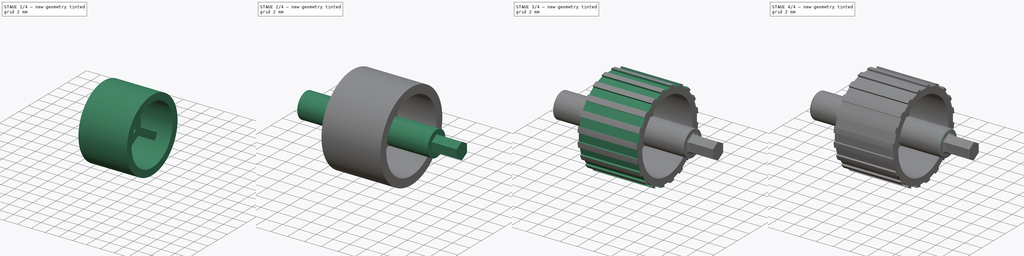
[diagram: build sequence overview — one tinted view per stage of 4, left to right]
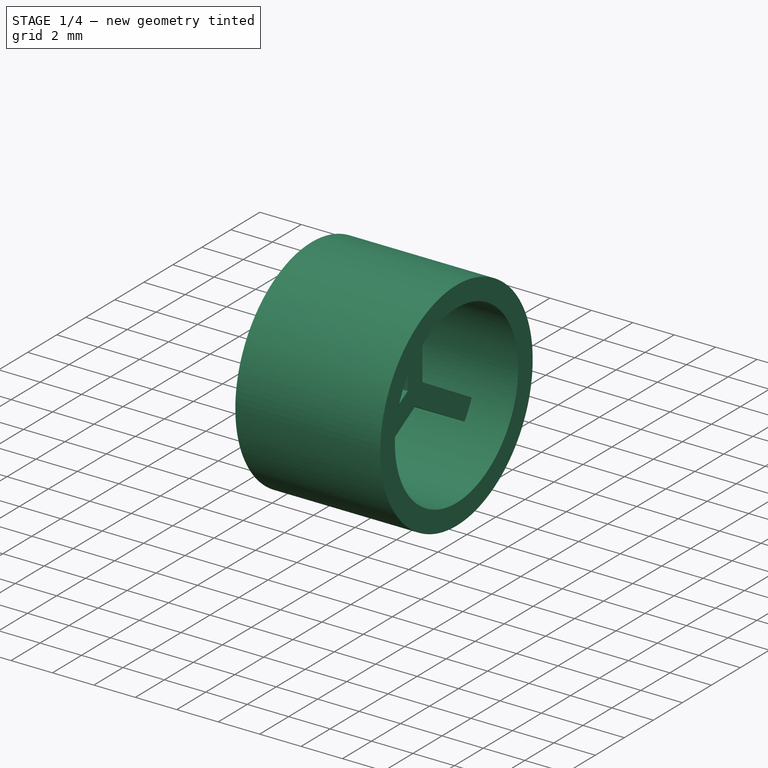
[diagram: stage 1 of 4 — iso view after this stage's code; geometry added in this stage tinted green]
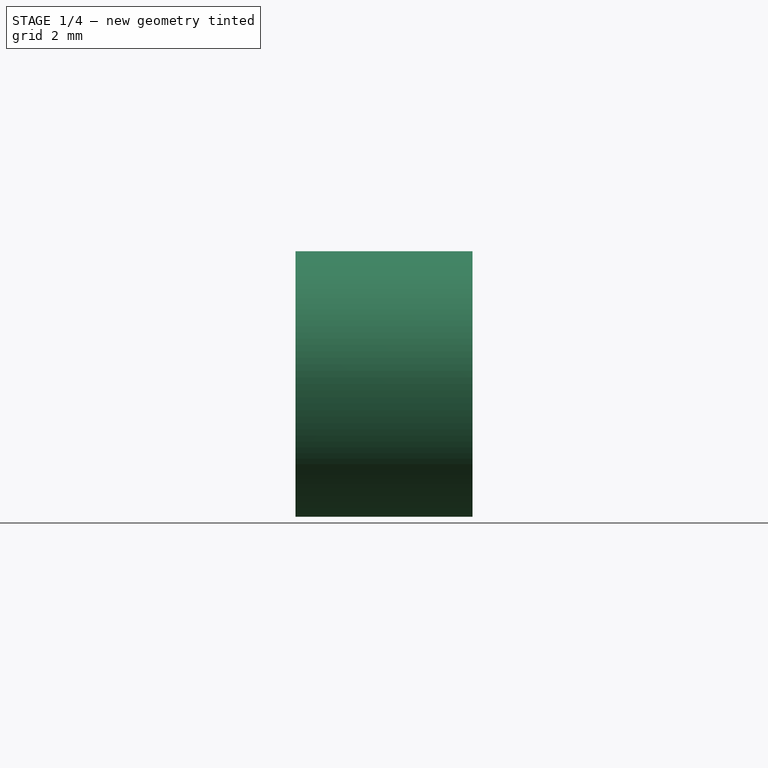
[diagram: stage 1 of 4 — front view after this stage's code; geometry added in this stage tinted green]
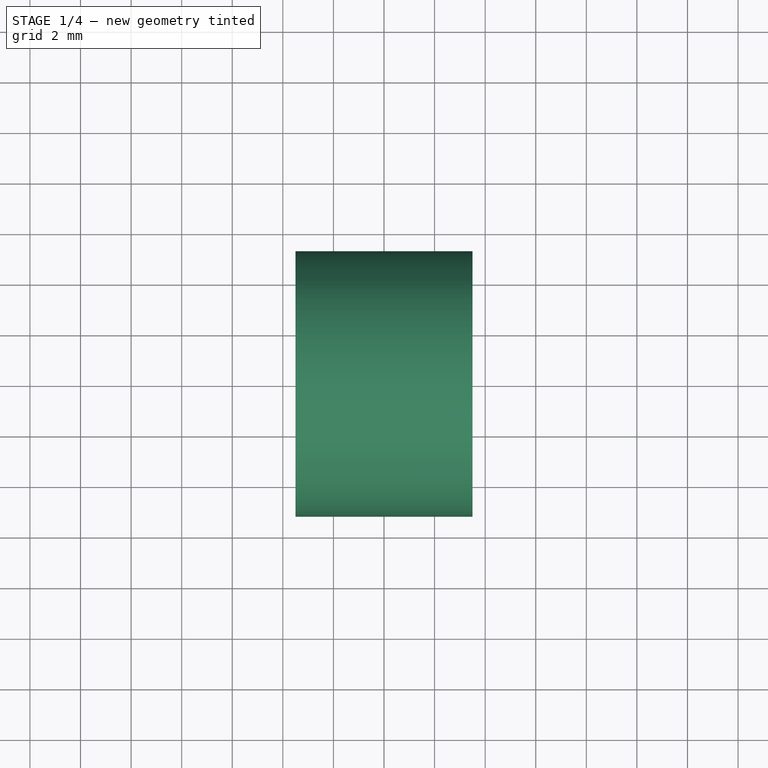
[diagram: stage 1 of 4 — top view after this stage's code; geometry added in this stage tinted green]
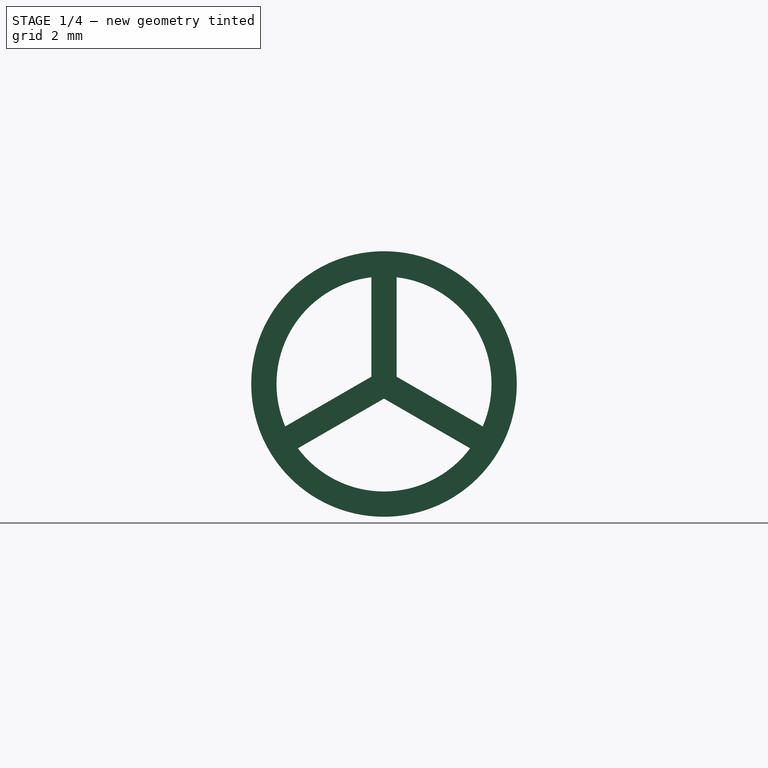
[diagram: stage 1 of 4 — right view after this stage's code; geometry added in this stage tinted green]
FCSTD DOCUMENT  (FreeCAD 1.0R39285 (Git))
Label: scroll_1.73_10.5mm
License: All rights reserved
LicenseURL: https://en.wikipedia.org/wiki/All_rights_reserved
objects: Part::Feature×49, Sketcher::SketchObject×5, PartDesign::Pad×5, App::Part×5, PartDesign::Fillet×4, PartDesign::PolarPattern×2, PartDesign::Pocket×1, PartDesign::Body×1
note: 94 computed .brp shape members not serialized (recipe doc carries the construction recipe); baked Part::Feature solids carry a one-line shape summary decoded from their .brp

FEATURE [Sketcher::SketchObject] Sketch
  ArcFitTolerance = 1e-06
  AttachmentSupport = -> [YZ_Plane]
  FullyConstrained = true
  MakeInternals = false
  MapMode = 5
  Placement = pos=(0,0,0) rot=(0.57735,0.57735,0.57735;2.0944rad)
  sketch-geometry (2):
    g0: Circle CenterX=0 CenterY=0 CenterZ=0 NormalX=0 NormalY=0 NormalZ=1 AngleXU=0 Radius=5.25
    g1: Circle CenterX=0 CenterY=0 CenterZ=0 NormalX=0 NormalY=0 NormalZ=1 AngleXU=0 Radius=4.25
  constraints (4):
    c: Diameter(g0) = 10.5
    c: Diameter(g1) = 8.5
    c: Coincident(g0,g-1)
    c: Coincident(g1,g0)
FEATURE [PartDesign::Pad] Pad
  Direction = (1,0,0)
  Length = 7
  Length2 = 10
  Midplane = true
  Placement = pos=(0,0,0) rot=(1,1,1;2.0944rad)
  Profile = -> Sketch
  ReferenceAxis = -> Sketch [N_Axis]
  Refine = true
  Suppressed = false
  Type = 0
FEATURE [Sketcher::SketchObject] Sketch001
  ArcFitTolerance = 1e-06
  AttachmentSupport = -> [YZ_Plane]
  ExternalGeometry = -> [Pad]
  FullyConstrained = true
  MakeInternals = false
  MapMode = 5
  Placement = pos=(0,0,0) rot=(0.57735,0.57735,0.57735;2.0944rad)
  sketch-geometry (7):
    g0: LineSegment StartX=-0.5 StartY=4.75 StartZ=0 EndX=-0.5 EndY=0 EndZ=0
    g1: LineSegment StartX=-0.5 StartY=0 StartZ=0 EndX=0.5 EndY=0 EndZ=0
    g2: LineSegment StartX=0.5 StartY=0 StartZ=0 EndX=0.5 EndY=4.75 EndZ=0
    g3: LineSegment StartX=0.5 StartY=4.75 StartZ=0 EndX=-0.5 EndY=4.75 EndZ=0
    g4: LineSegment [constr] StartX=0 StartY=5.25 StartZ=0 EndX=0 EndY=4.25 EndZ=0
    g5: GeomPoint [constr] X=0 Y=4.75 Z=0
    g6: GeomPoint [constr] X=0 Y=4.75 Z=0
  constraints (17):
    c: Coincident(g0,g1)
    c: Coincident(g1,g2)
    c: Coincident(g2,g3)
    c: Coincident(g3,g0)
    c: Vertical(g0)
    c: Vertical(g2)
    c: Horizontal(g1)
    c: Horizontal(g3)
    c: Distance(g1,g1) = 1
    c: Vertical(g4)
    c: PointOnObject(g4,g-4)
    c: PointOnObject(g4,g-3)
    c: Symmetric(g4,g4,g5)
    c: PointOnObject(g5,g-2)
    c: Symmetric(g3,g3,g6)
    c: Coincident(g6,g5)
    c: PointOnObject(g1,g-1)
FEATURE [PartDesign::Pad] Pad001
  BaseFeature = -> Pad
  Direction = (1,0,0)
  Length = 3
  Length2 = 10
  Midplane = true
  Placement = pos=(0,0,0) rot=(1,1,1;2.0944rad)
  Profile = -> Sketch001
  ReferenceAxis = -> Sketch001 [N_Axis]
  Refine = true
  Suppressed = false
  Type = 0
FEATURE [PartDesign::PolarPattern] PolarPattern
  Angle = 360
  Axis = -> Sketch001 [N_Axis]
  BaseFeature = -> Pad001
  Mode = 0
  Occurrences = 3
  Offset = 120
  Originals = -> [Pad001]
  Placement = pos=(0,0,0) rot=(1,1,1;2.0944rad)
  Refine = true
  Suppressed = false
  TransformMode = 0
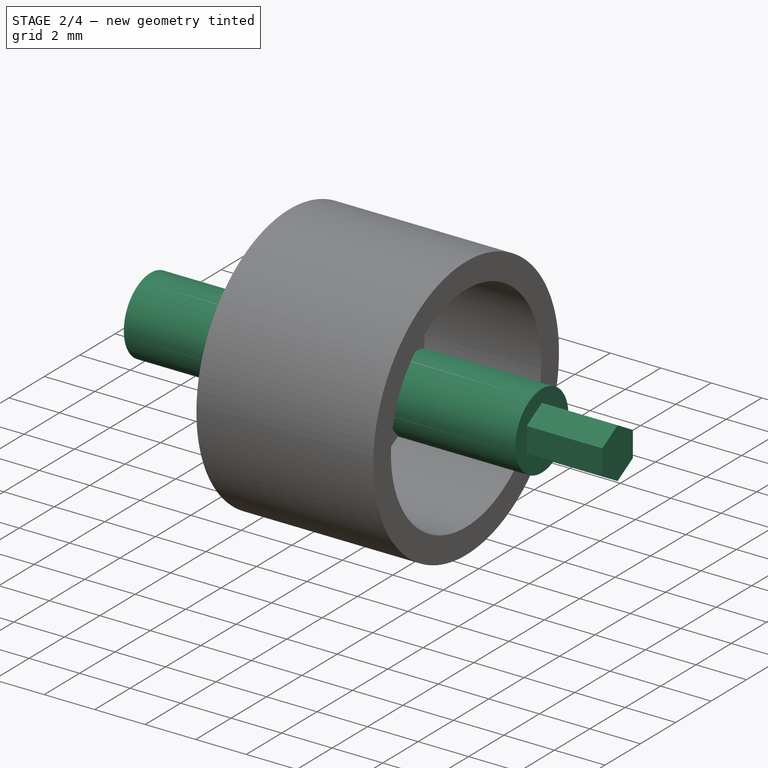
[diagram: stage 2 of 4 — iso view after this stage's code; geometry added in this stage tinted green]
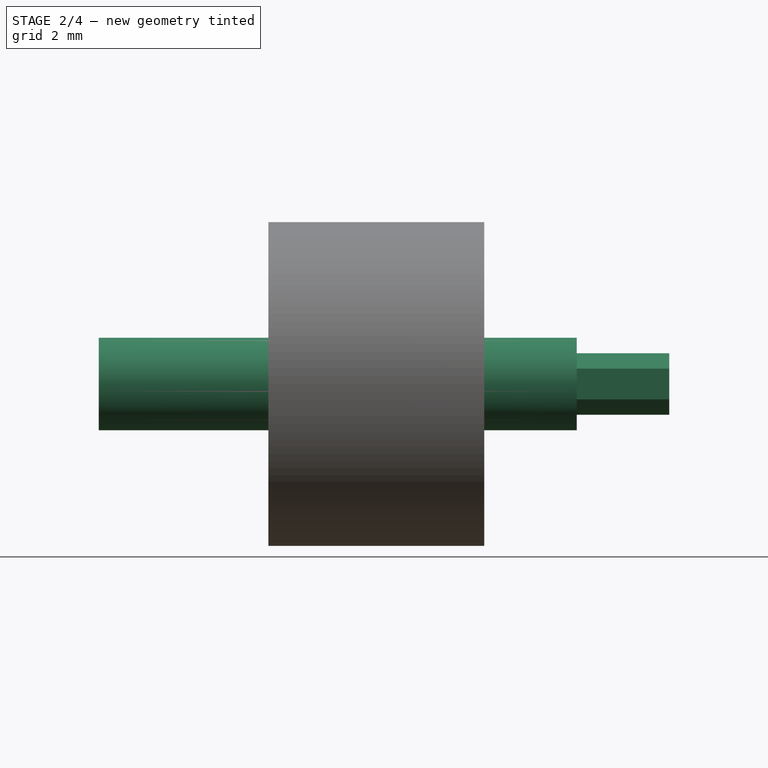
[diagram: stage 2 of 4 — front view after this stage's code; geometry added in this stage tinted green]
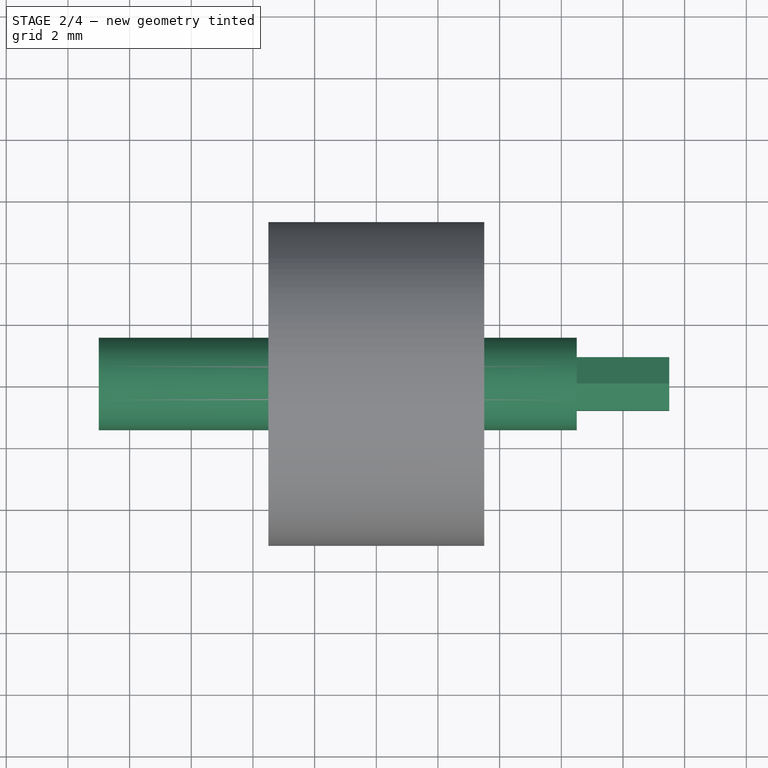
[diagram: stage 2 of 4 — top view after this stage's code; geometry added in this stage tinted green]
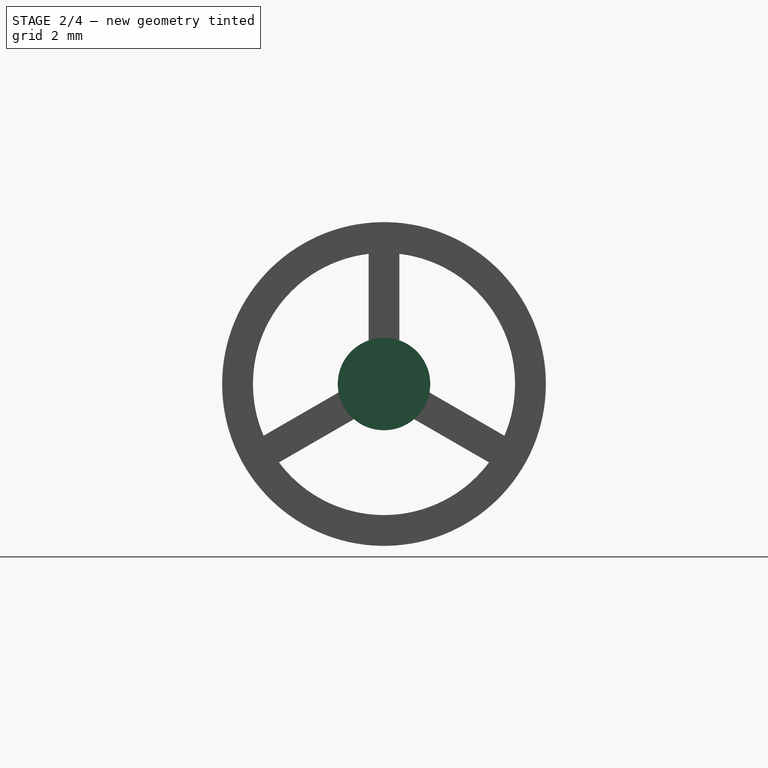
[diagram: stage 2 of 4 — right view after this stage's code; geometry added in this stage tinted green]
FEATURE [Sketcher::SketchObject] Sketch002
  ArcFitTolerance = 1e-06
  AttachmentSupport = -> [YZ_Plane]
  FullyConstrained = true
  MakeInternals = false
  MapMode = 5
  Placement = pos=(0,0,0) rot=(0.57735,0.57735,0.57735;2.0944rad)
  sketch-geometry (1):
    g0: Circle CenterX=0 CenterY=0 CenterZ=0 NormalX=0 NormalY=0 NormalZ=1 AngleXU=0 Radius=1.5
  constraints (2):
    c: Diameter(g0) = 3
    c: Coincident(g0,g-1)
FEATURE [PartDesign::Pad] Pad002
  BaseFeature = -> PolarPattern
  Direction = (1,0,0)
  Length = 6.5
  Length2 = 10
  Placement = pos=(0,0,0) rot=(1,1,1;2.0944rad)
  Profile = -> Sketch002
  ReferenceAxis = -> Sketch002 [N_Axis]
  Refine = true
  Suppressed = false
  Type = 0
FEATURE [PartDesign::Pad] Pad003
  BaseFeature = -> Pad002
  Direction = (1,0,0)
  Length = 9
  Length2 = 10
  Placement = pos=(0,0,0) rot=(1,1,1;2.0944rad)
  Profile = -> Sketch002
  ReferenceAxis = -> Sketch002 [N_Axis]
  Refine = true
  Reversed = true
  Suppressed = false
  Type = 0
FEATURE [Part::Feature] Part__Feature  label="C_0402_1005Metric"
  Placement = pos=(-0.25,11.55,1.55) rot=(0,0,1;1.5708rad)
  shape: bbox 0.5 x 1 x 0.5 mm, 28 faces (baked)
FEATURE [Part::Feature] Part__Feature001  label="C_0402_1005Metric001"
  Placement = pos=(4.4,10.85,1.55) rot=(0,0,1;1.5708rad)
  shape: bbox 0.5 x 1 x 0.5 mm, 28 faces (baked)
FEATURE [Part::Feature] Part__Feature002  label="C_0805_2012Metric"
  Placement = pos=(-7.3,-13.65,1.55) rot=(0,0,-1;1.5708rad)
  shape: bbox 1.25 x 2 x 1.25 mm, 28 faces (baked)
FEATURE [Part::Feature] Part__Feature003  label="R_0402_1005Metric"
  Placement = pos=(-7.1,-7.95,1.55) rot=(0,0,-1;1.5708rad)
  shape: bbox 0.5 x 1 x 0.35 mm, 26 faces (baked)
FEATURE [Part::Feature] Part__Feature004  label="DFN-6-1EP_2x2mm_P0.65mm_EP1x1.6mm"
  Placement = pos=(4.3,1.55,1.55) rot=(0,0,1;3.14159rad)
  shape: bbox 2 x 1.98 x 0.64 mm, 50 faces (baked)
FEATURE [Part::Feature] Part__Feature005  label="C_0201_0603Metric"
  Placement = pos=(1.4,10.75,1.55) rot=(0,0,1;3.14159rad)
  shape: bbox 0.6 x 0.3 x 0.3 mm, 28 faces (baked)
FEATURE [Part::Feature] Part__Feature006  label="nrf52820_hiiri 1.7"
  Placement = pos=(6.79765,8.77,10.619) rot=(0.57735,0.57735,0.57735;2.0944rad)
  shape: bbox 6.1 x 11.14 x 16.1 mm, 397 faces (baked)
FEATURE [Part::Feature] Part__Feature007  label="R_0402_1005Metric001"
  Placement = pos=(-7,-4.45,1.55) rot=(0,0,-1;1.5708rad)
  shape: bbox 0.5 x 1 x 0.35 mm, 26 faces (baked)
FEATURE [Part::Feature] Part__Feature008  label="C_0201_0603Metric001"
  Placement = pos=(1.5,12.95,1.55) rot=(0,0,1;3.14159rad)
  shape: bbox 0.6 x 0.3 x 0.3 mm, 28 faces (baked)
FEATURE [Part::Feature] Part__Feature009  label="C_0402_1005Metric002"
  Placement = pos=(-3.4,4.15,1.55) rot=(0,0,-1;1.5708rad)
  shape: bbox 0.5 x 1 x 0.5 mm, 28 faces (baked)
FEATURE [Part::Feature] Part__Feature010  label="R_0201_0603Metric"
  Placement = pos=(0.4,13.25,1.55) rot=(0,0,-1;1.5708rad)
  shape: bbox 0.3 x 0.6 x 0.23 mm, 26 faces (baked)
FEATURE [Part::Feature] Part__Feature011  label="R_0201_0603Metric001"
  Placement = pos=(0.7,14.35,1.55) rot=(0,0,1;0rad)
  shape: bbox 0.6 x 0.3 x 0.23 mm, 26 faces (baked)
FEATURE [Part::Feature] Part__Feature012  label="D2F_01F_BASE"
  shape: bbox 12.8 x 10 x 5.8 mm, 33 faces (baked)
FEATURE [Part::Feature] Part__Feature013  label="D2F_01F_ACTUATOR"
  Placement = pos=(-5.2,6,0) rot=(0,0,1;0rad)
  shape: bbox 1.2 x 3.5 x 2.9 mm, 6 faces (baked)
FEATURE [App::Part] D2F_01F
  Group = -> [Part__Feature012,Part__Feature013]
  Origin = -> Origin001
  Placement = pos=(15.3,5,3.05) rot=(0.57735,-0.57735,-0.57735;2.0944rad)
FEATURE [Part::Feature] Part__Feature014  label="C_0402_1005Metric003"
  Placement = pos=(7.25,-8.05,1.55) rot=(0,0,1;0rad)
  shape: bbox 1 x 0.5 x 0.5 mm, 28 faces (baked)
FEATURE [Part::Feature] Part__Feature015  label="C_0603_1608Metric"
  Placement = pos=(7.05,-5.05,1.55) rot=(0,0,-1;1.5708rad)
  shape: bbox 0.8 x 1.6 x 0.8 mm, 28 faces (baked)
FEATURE [Part::Feature] Part__Feature016  label="C_0603_1608Metric001"
  Placement = pos=(7.05,-11.1,1.55) rot=(0,0,-1;1.5708rad)
  shape: bbox 0.8 x 1.6 x 0.8 mm, 28 faces (baked)
FEATURE [Part::Feature] Part__Feature017  label="R_0402_1005Metric002"
  Placement = pos=(9.8,2.05,1.55) rot=(0,0,1;0rad)
  shape: bbox 1 x 0.5 x 0.35 mm, 26 faces (baked)
FEATURE [Part::Feature] Part__Feature018  label="C_0402_1005Metric004"
  Placement = pos=(-3.6,9.55,1.55) rot=(0,0,1;3.14159rad)
  shape: bbox 1 x 0.5 x 0.5 mm, 28 faces (baked)
FEATURE [Part::Feature] Part__Feature019  label="R_0603_1608Metric"
  Placement = pos=(-7.1,-10.45,1.55) rot=(0,0,-1;1.5708rad)
  shape: bbox 0.8 x 1.6 x 0.45 mm, 26 faces (baked)
FEATURE [Part::Feature] Part__Feature020  label="C_0402_1005Metric005"
  Placement = pos=(6.8,-2.65,1.55) rot=(0,0,1;1.5708rad)
  shape: bbox 0.5 x 1 x 0.5 mm, 28 faces (baked)
FEATURE [Part::Feature] Part__Feature021  label="C_0402_1005Metric006"
  Placement = pos=(0.7,1.15,1.55) rot=(0,0,-1;1.5708rad)
  shape: bbox 0.5 x 1 x 0.5 mm, 28 faces (baked)
FEATURE [Part::Feature] Part__Feature022  label="L_0201_0603Metric"
  Placement = pos=(1.8,11.85,1.55) rot=(0,0,-1;1.5708rad)
  shape: bbox 0.3 x 0.6 x 0.3 mm, 28 faces (baked)
FEATURE [Part::Feature] Part__Feature023  label="C_0402_1005Metric007"
  Placement = pos=(3.3,11.3,1.55) rot=(0,0,1;1.5708rad)
  shape: bbox 0.5 x 1 x 0.5 mm, 28 faces (baked)
FEATURE [Part::Feature] Part__Feature024  label="LED_0603_1608Metric"
  Placement = pos=(-1.7,1,1.55) rot=(0,0,1;3.14159rad)
  shape: bbox 1.6 x 0.8 x 1.1 mm, 50 faces (baked)
FEATURE [Part::Feature] Part__Feature025  label="C_0402_1005Metric008"
  Placement = pos=(7.25,-7.05,1.55) rot=(0,0,1;0rad)
  shape: bbox 1 x 0.5 x 0.5 mm, 28 faces (baked)
FEATURE [Part::Feature] Part__Feature026  label="C_0402_1005Metric009"
  Placement = pos=(2.15,1.15,1.55) rot=(0,0,-1;1.5708rad)
  shape: bbox 0.5 x 1 x 0.5 mm, 28 faces (baked)
FEATURE [Part::Feature] Part__Feature027  label="R_0402_1005Metric003"
  Placement = pos=(6.9,0.75,1.55) rot=(0,0,1;0rad)
  shape: bbox 1 x 0.5 x 0.35 mm, 26 faces (baked)
FEATURE [Part::Feature] Part__Feature028  label="QFN-40-1EP_5x5mm_P0.4mm_EP3.6x3.6mm"
  Placement = pos=(0.7,7.25,1.55) rot=(0,0,1;1.5708rad)
  shape: bbox 5 x 5 x 0.77 mm, 254 faces (baked)
FEATURE [Part::Feature] Part__Feature029  label="C_0402_1005Metric010"
  Placement = pos=(3.95,3.35,1.55) rot=(0,0,1;0rad)
  shape: bbox 1 x 0.5 x 0.5 mm, 28 faces (baked)
FEATURE [Part::Feature] Part__Feature030  label="R_0402_1005Metric004"
  Placement = pos=(1.1,3,1.55) rot=(0,0,1;1.5708rad)
  shape: bbox 0.5 x 1 x 0.35 mm, 26 faces (baked)
FEATURE [Part::Feature] Part__Feature031  label="C_0402_1005Metric011"
  Placement = pos=(6.45,2.15,1.55) rot=(0,0,1;1.5708rad)
  shape: bbox 0.5 x 1 x 0.5 mm, 28 faces (baked)
FEATURE [Part::Feature] Part__Feature032  label="C_0402_1005Metric012"
  Placement = pos=(-1.2,11.55,1.55) rot=(0,0,1;1.5708rad)
  shape: bbox 0.5 x 1 x 0.5 mm, 28 faces (baked)
FEATURE [Part::Feature] Part__Feature033  label="C_0402_1005Metric013"
  Placement = pos=(-2.86,6.85,1.55) rot=(0,0,1;1.5708rad)
  shape: bbox 0.5 x 1 x 0.5 mm, 28 faces (baked)
FEATURE [Part::Feature] Part__Feature034  label="L_0201_0603Metric001"
  Placement = pos=(1.8,14.05,1.55) rot=(0,0,-1;1.5708rad)
  shape: bbox 0.3 x 0.6 x 0.3 mm, 28 faces (baked)
FEATURE [Part::Feature] Part__Feature035  label="C_0402_1005Metric014"
  Placement = pos=(-4.4,11.45,1.55) rot=(0,0,-1;1.5708rad)
  shape: bbox 0.5 x 1 x 0.5 mm, 28 faces (baked)
FEATURE [Part::Feature] Part__Feature036  label="R_0201_0603Metric002"
  Placement = pos=(2.9,14.35,1.55) rot=(0,0,1;0rad)
  shape: bbox 0.6 x 0.3 x 0.23 mm, 26 faces (baked)
FEATURE [Part::Feature] Part__Feature037  label="Body001"
  shape: bbox 1.6 x 1.2 x 0.3 mm, 39 faces (baked)
FEATURE [Part::Feature] Part__Feature038  label="Pins"
  Placement = pos=(-0.145203,-0.0434717,0) rot=(0,0,1;0rad)
  shape: bbox 0.575 x 0.475 x 0.15 mm, 9 faces (baked)
FEATURE [Part::Feature] Part__Feature039  label="Pins001"
  Placement = pos=(-0.145203,-0.0434717,0) rot=(0,0,1;0rad)
  shape: bbox 0.575 x 0.475 x 0.15 mm, 9 faces (baked)
FEATURE [Part::Feature] Part__Feature040  label="Pins002"
  Placement = pos=(-0.145203,-0.0434717,0) rot=(0,0,1;0rad)
  shape: bbox 0.575 x 0.475 x 0.15 mm, 9 faces (baked)
FEATURE [Part::Feature] Part__Feature041  label="Pins003"
  Placement = pos=(-0.145203,-0.0434717,0) rot=(0,0,1;0rad)
  shape: bbox 0.575 x 0.475 x 0.15 mm, 10 faces (baked)
FEATURE [App::Part] Pins  label="Pins004"
  Group = -> [Part__Feature038,Part__Feature039,Part__Feature040,Part__Feature041]
  Origin = -> Origin002
FEATURE [Part::Feature] Part__Feature042  label="Cover"
  Placement = pos=(0,0,0.3) rot=(0,0,1;0rad)
  shape: bbox 1.68 x 1.28 x 0.1199 mm, 77 faces (baked)
FEATURE [App::Part] XTAL_SMD1612
  Group = -> [Part__Feature037,Pins,Part__Feature042]
  Origin = -> Origin003
  Placement = pos=(-2.8,11.3,1.55) rot=(0,0,1;3.14159rad)
FEATURE [Part::Feature] Part__Feature043  label="C_0402_1005Metric015"
  Placement = pos=(7.25,-9.05,1.55) rot=(0,0,1;0rad)
  shape: bbox 1 x 0.5 x 0.5 mm, 28 faces (baked)
FEATURE [Part::Feature] Part__Feature044  label="R_0402_1005Metric005"
  Placement = pos=(-5.55,3.2,1.55) rot=(0,0,-1;1.5708rad)
  shape: bbox 0.5 x 1 x 0.35 mm, 26 faces (baked)
FEATURE [Part::Feature] Part__Feature045  label="C_0402_1005Metric016"
  Placement = pos=(-2,3.65,1.55) rot=(0,0,1;3.14159rad)
  shape: bbox 1 x 0.5 x 0.5 mm, 28 faces (baked)
FEATURE [Part::Feature] Part__Feature046  label="D2F_01F_BASE001"
  shape: bbox 12.8 x 10 x 5.8 mm, 33 faces (baked)
FEATURE [Part::Feature] Part__Feature047  label="D2F_01F_ACTUATOR001"
  Placement = pos=(-5.2,6,0) rot=(0,0,1;0rad)
  shape: bbox 1.2 x 3.5 x 2.9 mm, 6 faces (baked)
FEATURE [App::Part] D2F_01F001
  Group = -> [Part__Feature046,Part__Feature047]
  Origin = -> Origin004
  Placement = pos=(-15.3,5,3.05) rot=(0.57735,-0.57735,-0.57735;2.0944rad)
FEATURE [Part::Feature] Part__Feature048  label="nrf52820_hiiri_PCB"
  shape: bbox 34.2 x 31.3 x 1.465 mm, 108 faces (baked)
FEATURE [App::Part] nrf52820_hiiri_1  label="nrf52820_hiiri 1"
  Group = -> [Part__Feature,Part__Feature001,Part__Feature002,Part__Feature003,Part__Feature004,Part__Feature005,Part__Feature006,Part__Feature007,Part__Feature008,Part__Feature009,Part__Feature010,Part__Feature011,D2F_01F,Part__Feature014,Part__Feature015,Part__Feature016,Part__Feature017,Part__Feature018,Part__Feature019,Part__Feature020,Part__Feature021,Part__Feature022,Part__Feature023,Part__Feature024,+18 more]
  Origin = -> Origin005
  Placement = pos=(0.5,-8.77,-10.6) rot=(0,0,1;0rad)
FEATURE [Sketcher::SketchObject] Sketch003
  ArcFitTolerance = 1e-06
  AttachmentSupport = -> [YZ_Plane]
  FullyConstrained = true
  MakeInternals = false
  MapMode = 5
  Placement = pos=(0,0,0) rot=(0.57735,0.57735,0.57735;2.0944rad)
  sketch-geometry (7):
    g0: LineSegment StartX=0.865 StartY=-0.499408 StartZ=0 EndX=0.865 EndY=0.499408 EndZ=0
    g1: LineSegment StartX=0.865 StartY=0.499408 StartZ=0 EndX=0 EndY=0.998816 EndZ=0
    g2: LineSegment StartX=0 StartY=0.998816 StartZ=0 EndX=-0.865 EndY=0.499408 EndZ=0
    g3: LineSegment StartX=-0.865 StartY=0.499408 StartZ=0 EndX=-0.865 EndY=-0.499408 EndZ=0
    g4: LineSegment StartX=-0.865 StartY=-0.499408 StartZ=0 EndX=-1e-16 EndY=-0.998816 EndZ=0
    g5: LineSegment StartX=-1e-16 StartY=-0.998816 StartZ=0 EndX=0.865 EndY=-0.499408 EndZ=0
    g6: Circle [constr] CenterX=0 CenterY=0 CenterZ=0 NormalX=0 NormalY=0 NormalZ=1 AngleXU=0 Radius=0.998816
  constraints (16):
    c: Coincident(g0,g1)
    c: Coincident(g1,g2)
    c: Coincident(g2,g3)
    c: Coincident(g3,g4)
    c: Coincident(g4,g5)
    c: Coincident(g5,g0)
    c: Equal(g0, g1-g5) x5
    c: PointOnObject(g0,g6)
    c: PointOnObject(g1,g6)
    c: PointOnObject(g2,g6)
    c: PointOnObject(g3,g6)
    c: PointOnObject(g4,g6)
    c: PointOnObject(g5,g6)
    c: Vertical(g0)
    c: DistanceX(g2,g0) = 1.73
    c: Coincident(g6,g-1)
FEATURE [PartDesign::Pad] Pad004
  BaseFeature = -> Pad003
  Direction = (1,0,0)
  Length = 9.5
  Length2 = 10
  Placement = pos=(0,0,0) rot=(1,1,1;2.0944rad)
  Profile = -> Sketch003
  ReferenceAxis = -> Sketch003 [N_Axis]
  Refine = true
  Suppressed = false
  Type = 0
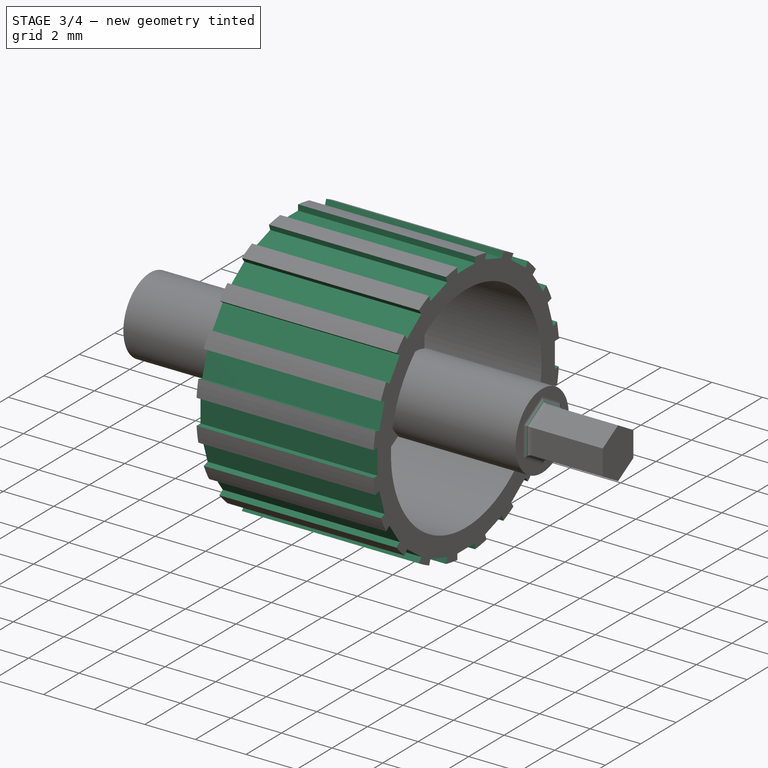
[diagram: stage 3 of 4 — iso view after this stage's code; geometry added in this stage tinted green]
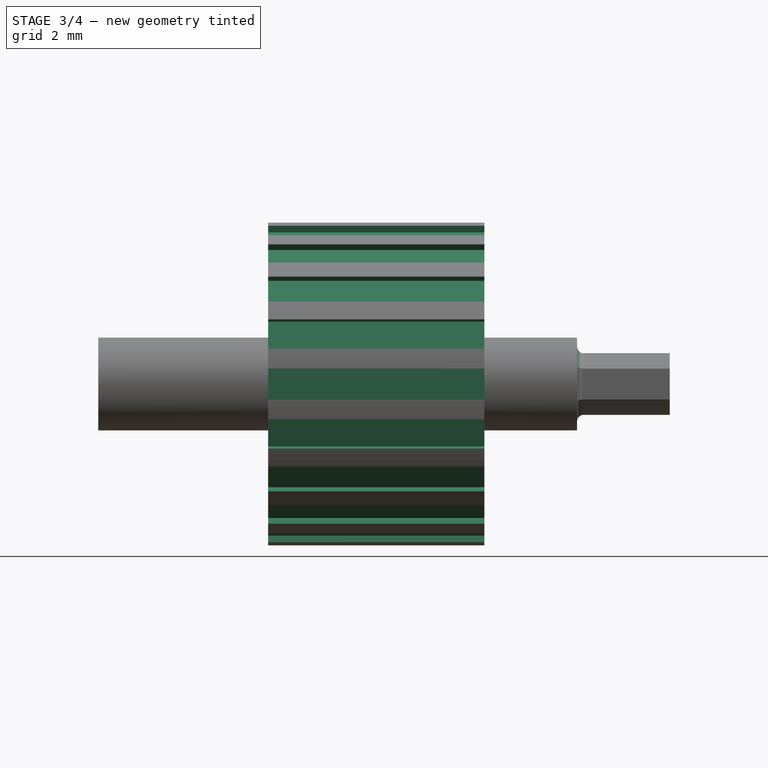
[diagram: stage 3 of 4 — front view after this stage's code; geometry added in this stage tinted green]
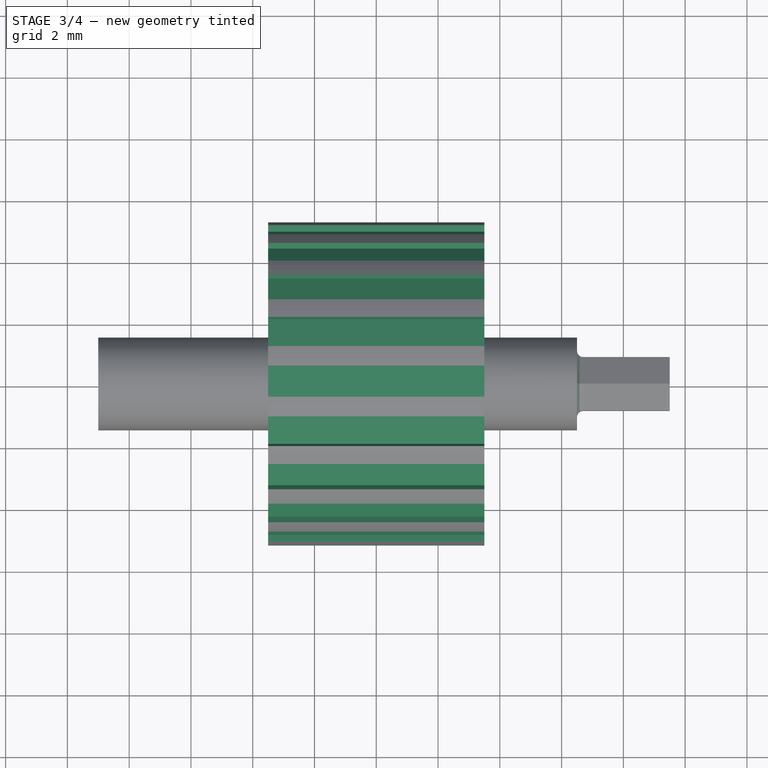
[diagram: stage 3 of 4 — top view after this stage's code; geometry added in this stage tinted green]
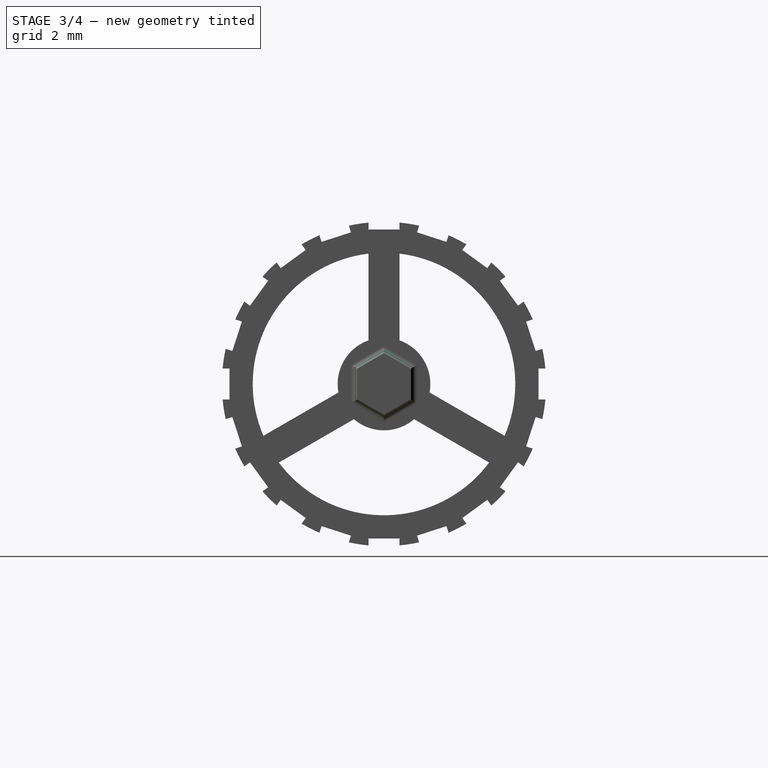
[diagram: stage 3 of 4 — right view after this stage's code; geometry added in this stage tinted green]
FEATURE [Sketcher::SketchObject] Sketch004
  ArcFitTolerance = 1e-06
  AttachmentSupport = -> [Pad004]
  ExternalGeometry = -> [Pad004]
  FullyConstrained = true
  MakeInternals = false
  MapMode = 5
  Placement = pos=(3.5,-3.9e-15,1.9e-15) rot=(0.57735,0.57735,0.57735;2.0944rad)
  sketch-geometry (6):
    g0: LineSegment StartX=-0.5 StartY=5.5 StartZ=0 EndX=-0.5 EndY=5 EndZ=0
    g1: LineSegment StartX=-0.5 StartY=5 StartZ=0 EndX=0.5 EndY=5 EndZ=0
    g2: LineSegment StartX=0.5 StartY=5 StartZ=0 EndX=0.5 EndY=5.5 EndZ=0
    g3: LineSegment StartX=0.5 StartY=5.5 StartZ=0 EndX=-0.5 EndY=5.5 EndZ=0
    g4: GeomPoint [constr] X=0 Y=5 Z=0
    g5: LineSegment [constr] StartX=0 StartY=5 StartZ=0 EndX=0 EndY=5.25 EndZ=0
  constraints (16):
    c: Coincident(g0,g1)
    c: Coincident(g1,g2)
    c: Coincident(g2,g3)
    c: Coincident(g3,g0)
    c: Vertical(g0)
    c: Vertical(g2)
    c: Horizontal(g1)
    c: Horizontal(g3)
    c: DistanceX(g3,g3) = 1
    c: DistanceY(g2,g2) = 0.5
    c: Symmetric(g1,g1,g4)
    c: PointOnObject(g4,g-2)
    c: Vertical(g5)
    c: PointOnObject(g5,g-3)
    c: Coincident(g5,g4)
    c: DistanceY(g5,g5) = 0.25
FEATURE [PartDesign::Pocket] Pocket
  BaseFeature = -> Pad004
  Direction = (-1,1e-15,1e-16)
  Length = 5
  Length2 = 5
  Placement = pos=(0,0,0) rot=(1,1,1;2.0944rad)
  Profile = -> Sketch004
  ReferenceAxis = -> Sketch004 [N_Axis]
  Refine = true
  Suppressed = false
  Type = 1
FEATURE [PartDesign::PolarPattern] PolarPattern001
  Angle = 360
  Axis = -> Sketch004 [N_Axis]
  BaseFeature = -> Pocket
  Mode = 0
  Occurrences = 20
  Offset = 120
  Originals = -> [Pocket]
  Placement = pos=(0,0,0) rot=(1,1,1;2.0944rad)
  Refine = true
  Suppressed = false
  TransformMode = 0
FEATURE [PartDesign::Fillet] Fillet
  Base = -> PolarPattern001 [Edge3,Edge5,Edge7,Edge2,Edge4,Edge6]
  BaseFeature = -> PolarPattern001
  Placement = pos=(0,0,0) rot=(1,1,1;2.0944rad)
  Radius = 0.2
  Refine = true
  SupportTransform = false
  Suppressed = false
  UseAllEdges = false
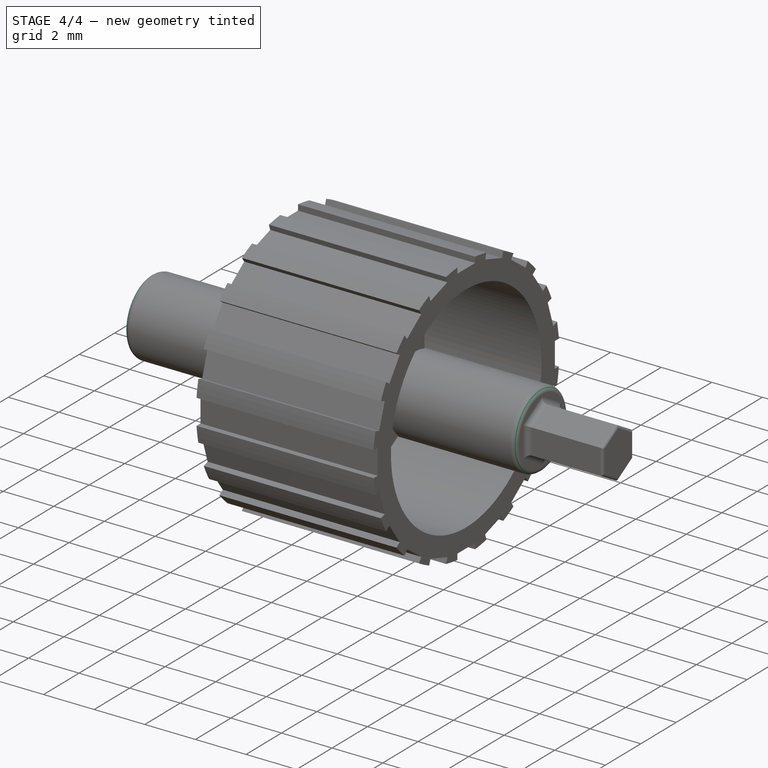
[diagram: stage 4 of 4 — iso view after this stage's code; geometry added in this stage tinted green]
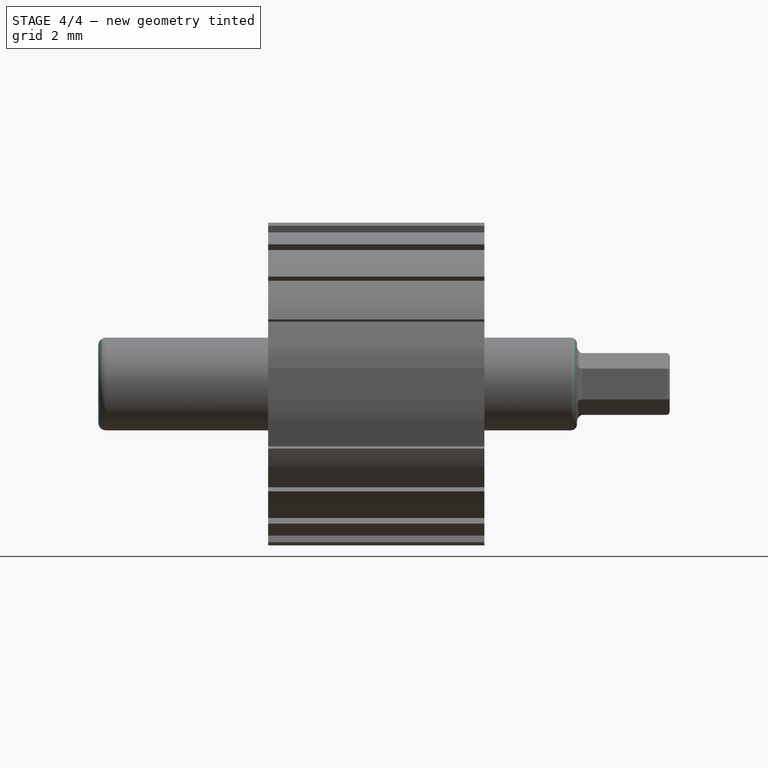
[diagram: stage 4 of 4 — front view after this stage's code; geometry added in this stage tinted green]
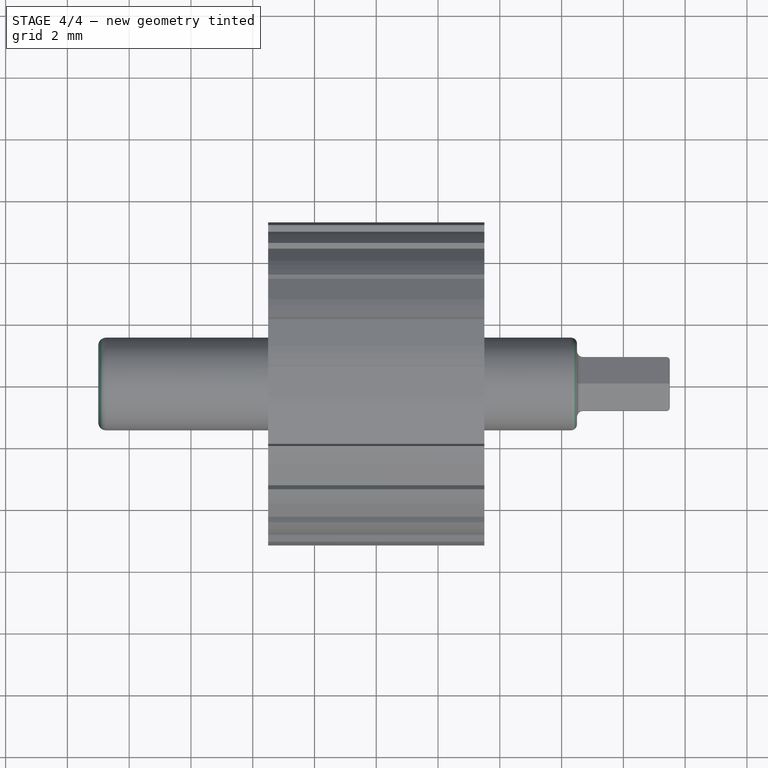
[diagram: stage 4 of 4 — top view after this stage's code; geometry added in this stage tinted green]
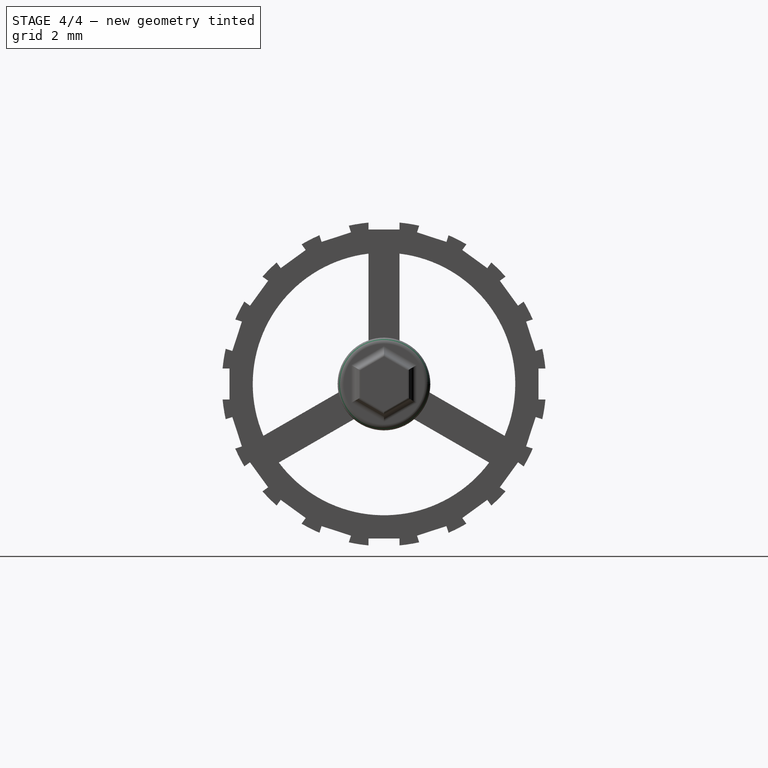
[diagram: stage 4 of 4 — right view after this stage's code; geometry added in this stage tinted green]
FEATURE [PartDesign::Fillet] Fillet001
  Base = -> Fillet [Edge7]
  BaseFeature = -> Fillet
  Placement = pos=(0,0,0) rot=(1,1,1;2.0944rad)
  Radius = 0.2
  Refine = true
  SupportTransform = false
  Suppressed = false
  UseAllEdges = false
FEATURE [PartDesign::Fillet] Fillet002
  Base = -> Fillet001 [Edge23]
  BaseFeature = -> Fillet001
  Placement = pos=(0,0,0) rot=(1,1,1;2.0944rad)
  Radius = 0.25
  Refine = true
  SupportTransform = false
  Suppressed = false
  UseAllEdges = false
FEATURE [PartDesign::Fillet] Fillet003
  Base = -> Fillet002 [Edge226,Edge230,Edge229,Edge233,Edge236,Edge234]
  BaseFeature = -> Fillet002
  Placement = pos=(0,0,0) rot=(1,1,1;2.0944rad)
  Radius = 0.1
  Refine = true
  SupportTransform = false
  Suppressed = false
  UseAllEdges = false
FEATURE [PartDesign::Body] Body
  AllowCompound = false
  Group = -> [Sketch,Pad,Sketch001,Pad001,PolarPattern,Sketch002,Pad002,Pad003,Sketch003,Pad004,Sketch004,Pocket,PolarPattern001,Fillet,Fillet001,Fillet002,Fillet003]
  Origin = -> Origin
  Tip = -> Fillet003
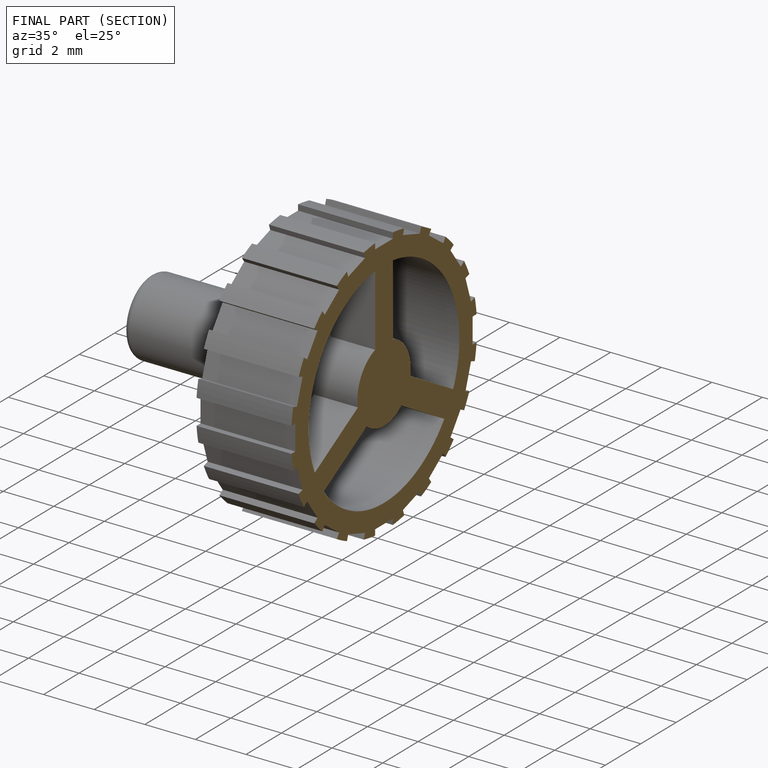
[diagram: finished part — half-section view (interior)]
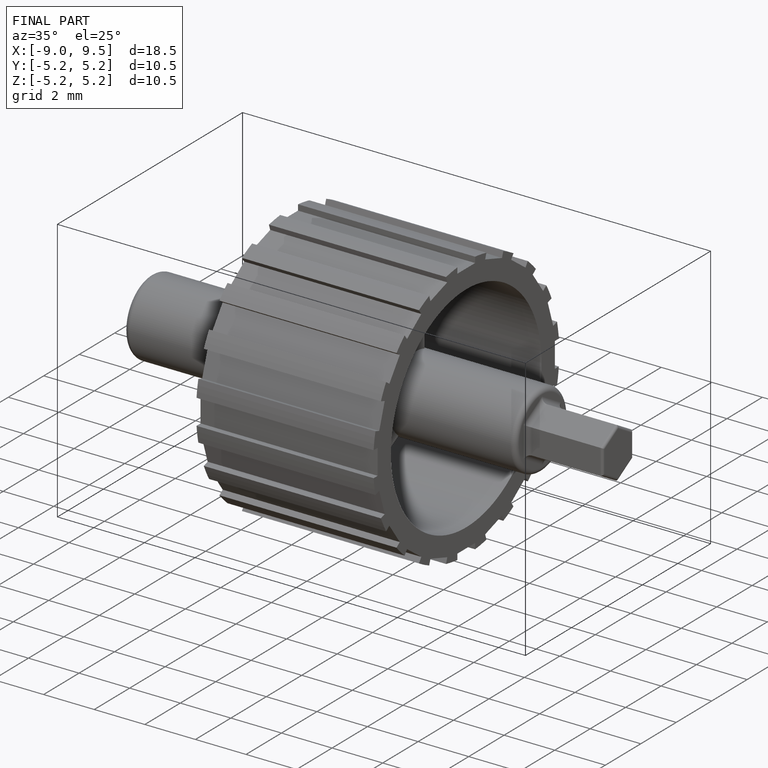
[diagram: finished part — iso view with bounding-box wireframe]
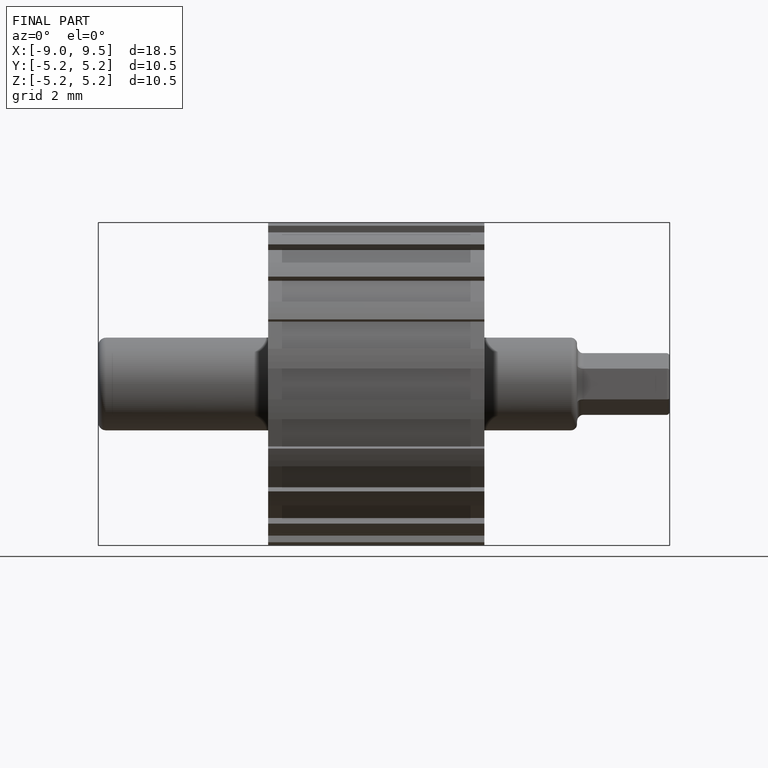
[diagram: finished part — front view with bounding-box wireframe]
